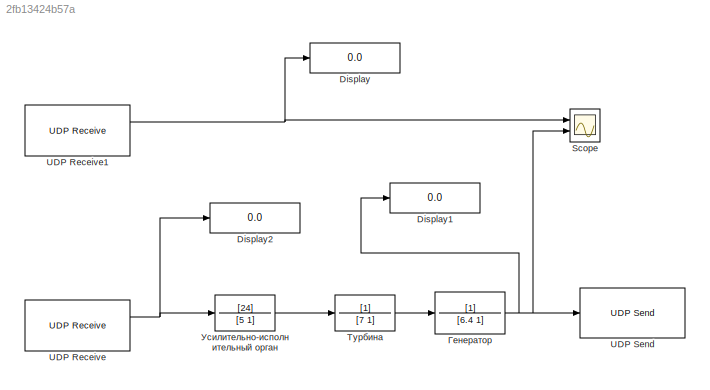
MODEL slx_2fb13424b57a
KIND model
CONFIG AbsTol = auto
CONFIG EnableMultiTasking = off
CONFIG FixedStep = auto
CONFIG MaxStep = auto
CONFIG MinStep = auto
CONFIG RelTol = 1e-3
CONFIG SampleTimeConstraint = Unconstrained
CONFIG SolverName = VariableStepAuto
CONFIG StartTime = 0.0
CONFIG StopTime = 100
BLOCK [Display] Display
  Decimation = 1
  Ports = [1]
BLOCK [Display] Display1
  Decimation = 1
  Ports = [1]
BLOCK [Display] Display2
  Decimation = 1
  Ports = [1]
BLOCK [Scope] Scope
  Floating = off
  NumInputPorts = 2
  Ports = [2]
  ScopeSpecificationString = Simulink.scopes.TimeScopeBlockCfg('CurrentConfiguration', extmgr.ConfigurationSet(extmgr.Configuration('Core','General UI',true),extmgr.Configuration('Core','Source UI',true),extmgr.Configuration('Sources','WiredSimulink',true),extmgr.Configuration('Visuals','Time Domain',true,'SerializedDisplays',{struct('MinYLimReal','-85.3347','MaxYLimReal','768.01233','YLabelReal','','MinYLimMag','0.00000','Ma...<+1455ch>
BLOCK [Reference] UDP Receive  REF=dspnetwork/UDP Receive
  Ports = [0, 2]
  SourceBlock = dspnetwork/UDP Receive
  SourceProductBaseCode = SL
  SourceType = UDP Receive
BLOCK [Reference] UDP Receive1  REF=dspnetwork/UDP Receive
  Ports = [0, 2]
  SourceBlock = dspnetwork/UDP Receive
  SourceProductBaseCode = SL
  SourceType = UDP Receive
BLOCK [Reference] UDP Send  REF=dspnetwork/UDP Send
  Ports = [1]
  SourceBlock = dspnetwork/UDP Send
  SourceProductBaseCode = SL
  SourceType = UDP Send
BLOCK [TransferFcn] Генератор
  Denominator = [6.4 1]
BLOCK [TransferFcn] Турбина
  Denominator = [7 1]
BLOCK [TransferFcn] Усилительно-исполнительный орган
  Denominator = [5 1]
  Numerator = [24]
NET UDP Receive1:1 -> Display:1, Scope:1
NET UDP Receive:1 -> Display2:1, Усилительно-исполнительный орган:1
NET Генератор:1 -> Display1:1, Scope:2, UDP Send:1
LINE Турбина:1 -> Генератор:1
LINE Усилительно-исполнительный орган:1 -> Турбина:1
note: NET lines group one-source signal fan-out (src -> all destinations, sorted); 1:1 wires keep LINE
